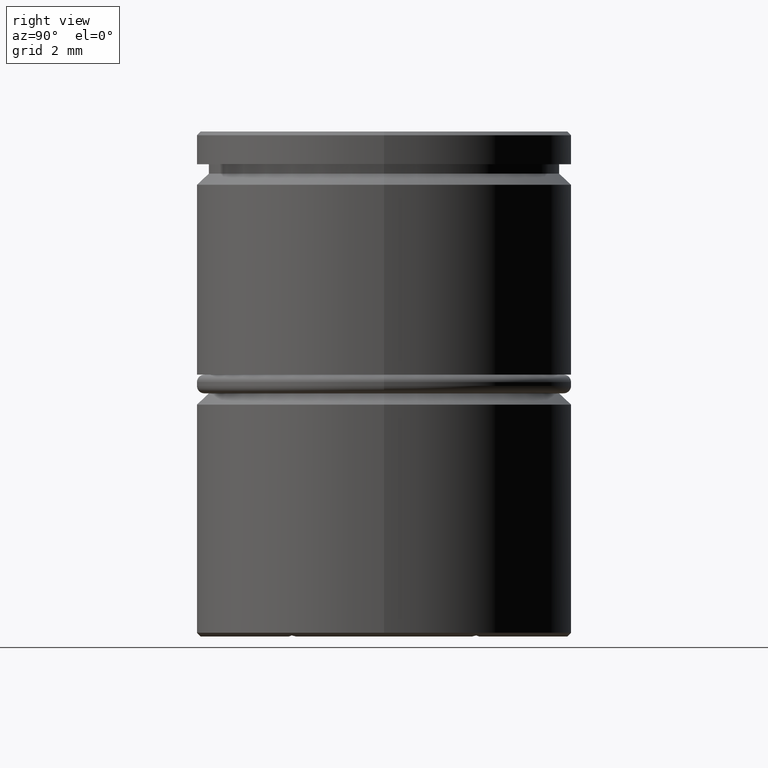
[diagram: clean part render]
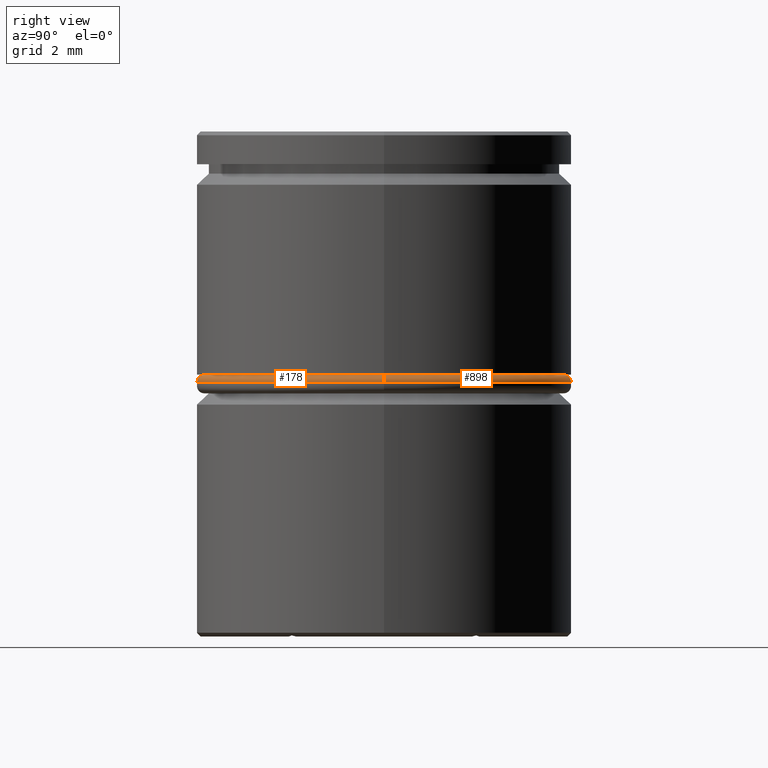
[diagram: same view with one multi-face feature highlighted, each face labeled with its STEP entity id]
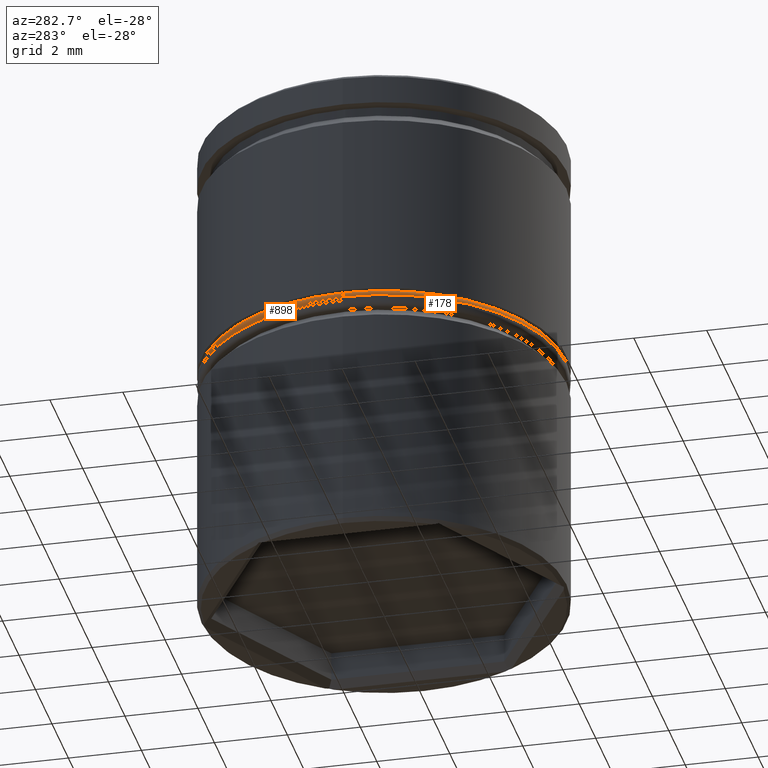
[diagram: same view with one multi-face feature highlighted, each face labeled with its STEP entity id]
A machine part, right view. The highlighted faces form ONE feature: a constant-radius fillet chain: 2 tangent blend faces with common blend radius 0.2 mm. The faces share edges in the B-rep.
A second angle (auxiliary view) of the same feature is appended — it is thin or edge-on in the first view.
Their STEP definitions:
[1] entity #178 (Torus):
#3 = VERTEX_POINT ( 'NONE', #1163 ) ;
#14 = DIRECTION ( 'NONE',  ( -0.000000000000000000, -1.000000000000000000, -0.000000000000000000 ) ) ;
#28 = EDGE_CURVE ( 'NONE', #835, #997, #852, .T. ) ;
#131 = EDGE_CURVE ( 'NONE', #1078, #997, #1222, .T. ) ;
#178 = ADVANCED_FACE ( 'NONE', ( #1319 ), #1101, .T. ) ;
#201 = ORIENTED_EDGE ( 'NONE', *, *, #299, .F. ) ;
#204 = DIRECTION ( 'NONE',  ( 0.000000000000000000, 0.000000000000000000, -1.000000000000000000 ) ) ;
#264 = ORIENTED_EDGE ( 'NONE', *, *, #131, .T. ) ;
#276 = DIRECTION ( 'NONE',  ( -0.000000000000000000, -0.000000000000000000, 1.000000000000000000 ) ) ;
#299 = EDGE_CURVE ( 'NONE', #1078, #3, #1213, .T. ) ;
#343 = DIRECTION ( 'NONE',  ( -1.000000000000000000, 0.000000000000000000, 0.000000000000000000 ) ) ;
#365 = CARTESIAN_POINT ( 'NONE',  ( -4.800000000000000711, 0.000000000000000000, -6.499999999999999112 ) ) ;
#399 = DIRECTION ( 'NONE',  ( -1.000000000000000000, -1.224646799147353454E-16, 0.000000000000000000 ) ) ;
#400 = DIRECTION ( 'NONE',  ( -1.000000000000000000, 0.000000000000000000, 0.000000000000000000 ) ) ;
#405 = CARTESIAN_POINT ( 'NONE',  ( 4.800000000000000711, 5.878304635907295197E-16, -6.699999999999997513 ) ) ;
#418 = EDGE_LOOP ( 'NONE', ( #694, #201, #264, #849 ) ) ;
#537 = AXIS2_PLACEMENT_3D ( 'NONE', #610, #276, #400 ) ;
#610 = CARTESIAN_POINT ( 'NONE',  ( 0.000000000000000000, 0.000000000000000000, -6.499999999999999112 ) ) ;
#692 = DIRECTION ( 'NONE',  ( 0.000000000000000000, 0.000000000000000000, -1.000000000000000000 ) ) ;
#694 = ORIENTED_EDGE ( 'NONE', *, *, #791, .F. ) ;
#766 = DIRECTION ( 'NONE',  ( -1.000000000000000000, 0.000000000000000000, 0.000000000000000000 ) ) ;
#771 = AXIS2_PLACEMENT_3D ( 'NONE', #405, #1118, #399 ) ;
#791 = EDGE_CURVE ( 'NONE', #3, #835, #1237, .T. ) ;
#796 = AXIS2_PLACEMENT_3D ( 'NONE', #1298, #692, #766 ) ;
#835 = VERTEX_POINT ( 'NONE', #1132 ) ;
#849 = ORIENTED_EDGE ( 'NONE', *, *, #28, .F. ) ;
#852 = CIRCLE ( 'NONE', #941, 5.000000000000000000 ) ;
#894 = CARTESIAN_POINT ( 'NONE',  ( -4.800000000000000711, 0.000000000000000000, -6.699999999999997513 ) ) ;
#941 = AXIS2_PLACEMENT_3D ( 'NONE', #1270, #204, #343 ) ;
#997 = VERTEX_POINT ( 'NONE', #1360 ) ;
#1078 = VERTEX_POINT ( 'NONE', #365 ) ;
#1101 = TOROIDAL_SURFACE ( 'NONE', #796, 4.800000000000000711, 0.2000000000000000111 ) ;
#1111 = DIRECTION ( 'NONE',  ( 0.000000000000000000, 0.000000000000000000, -1.000000000000000000 ) ) ;
#1118 = DIRECTION ( 'NONE',  ( -1.224646799147353207E-16, 1.000000000000000000, 0.000000000000000000 ) ) ;
#1132 = CARTESIAN_POINT ( 'NONE',  ( 5.000000000000000000, 0.000000000000000000, -6.699999999999997513 ) ) ;
#1155 = AXIS2_PLACEMENT_3D ( 'NONE', #894, #14, #1111 ) ;
#1163 = CARTESIAN_POINT ( 'NONE',  ( 4.800000000000000711, 6.000769315822031726E-16, -6.499999999999999112 ) ) ;
#1213 = CIRCLE ( 'NONE', #537, 4.800000000000000711 ) ;
#1222 = CIRCLE ( 'NONE', #1155, 0.1999999999999996503 ) ;
#1237 = CIRCLE ( 'NONE', #771, 0.1999999999999996503 ) ;
#1270 = CARTESIAN_POINT ( 'NONE',  ( 0.000000000000000000, 0.000000000000000000, -6.699999999999997513 ) ) ;
#1298 = CARTESIAN_POINT ( 'NONE',  ( 0.000000000000000000, 0.000000000000000000, -6.699999999999997513 ) ) ;
#1319 = FACE_OUTER_BOUND ( 'NONE', #418, .T. ) ;
#1360 = CARTESIAN_POINT ( 'NONE',  ( -5.000000000000000000, 6.123233995736766282E-16, -6.699999999999997513 ) ) ;
[2] entity #898 (Torus):
#3 = VERTEX_POINT ( 'NONE', #1163 ) ;
#14 = DIRECTION ( 'NONE',  ( -0.000000000000000000, -1.000000000000000000, -0.000000000000000000 ) ) ;
#73 = EDGE_CURVE ( 'NONE', #3, #1078, #88, .T. ) ;
#88 = CIRCLE ( 'NONE', #224, 4.800000000000000711 ) ;
#105 = AXIS2_PLACEMENT_3D ( 'NONE', #742, #330, #107 ) ;
#107 = DIRECTION ( 'NONE',  ( -1.000000000000000000, 0.000000000000000000, 0.000000000000000000 ) ) ;
#121 = EDGE_LOOP ( 'NONE', ( #1263, #921, #630, #1042 ) ) ;
#131 = EDGE_CURVE ( 'NONE', #1078, #997, #1222, .T. ) ;
#212 = EDGE_CURVE ( 'NONE', #997, #835, #1145, .T. ) ;
#224 = AXIS2_PLACEMENT_3D ( 'NONE', #314, #965, #953 ) ;
#259 = DIRECTION ( 'NONE',  ( 0.000000000000000000, 0.000000000000000000, -1.000000000000000000 ) ) ;
#314 = CARTESIAN_POINT ( 'NONE',  ( 0.000000000000000000, 0.000000000000000000, -6.499999999999999112 ) ) ;
#330 = DIRECTION ( 'NONE',  ( 0.000000000000000000, 0.000000000000000000, -1.000000000000000000 ) ) ;
#365 = CARTESIAN_POINT ( 'NONE',  ( -4.800000000000000711, 0.000000000000000000, -6.499999999999999112 ) ) ;
#399 = DIRECTION ( 'NONE',  ( -1.000000000000000000, -1.224646799147353454E-16, 0.000000000000000000 ) ) ;
#405 = CARTESIAN_POINT ( 'NONE',  ( 4.800000000000000711, 5.878304635907295197E-16, -6.699999999999997513 ) ) ;
#453 = TOROIDAL_SURFACE ( 'NONE', #105, 4.800000000000000711, 0.2000000000000000111 ) ;
#630 = ORIENTED_EDGE ( 'NONE', *, *, #212, .F. ) ;
#683 = DIRECTION ( 'NONE',  ( -1.000000000000000000, 0.000000000000000000, 0.000000000000000000 ) ) ;
#742 = CARTESIAN_POINT ( 'NONE',  ( 0.000000000000000000, 0.000000000000000000, -6.699999999999997513 ) ) ;
#771 = AXIS2_PLACEMENT_3D ( 'NONE', #405, #1118, #399 ) ;
#791 = EDGE_CURVE ( 'NONE', #3, #835, #1237, .T. ) ;
#835 = VERTEX_POINT ( 'NONE', #1132 ) ;
#894 = CARTESIAN_POINT ( 'NONE',  ( -4.800000000000000711, 0.000000000000000000, -6.699999999999997513 ) ) ;
#898 = ADVANCED_FACE ( 'NONE', ( #1378 ), #453, .T. ) ;
#921 = ORIENTED_EDGE ( 'NONE', *, *, #791, .T. ) ;
#953 = DIRECTION ( 'NONE',  ( -1.000000000000000000, 0.000000000000000000, 0.000000000000000000 ) ) ;
#965 = DIRECTION ( 'NONE',  ( -0.000000000000000000, -0.000000000000000000, 1.000000000000000000 ) ) ;
#997 = VERTEX_POINT ( 'NONE', #1360 ) ;
#1042 = ORIENTED_EDGE ( 'NONE', *, *, #131, .F. ) ;
#1078 = VERTEX_POINT ( 'NONE', #365 ) ;
#1111 = DIRECTION ( 'NONE',  ( 0.000000000000000000, 0.000000000000000000, -1.000000000000000000 ) ) ;
#1118 = DIRECTION ( 'NONE',  ( -1.224646799147353207E-16, 1.000000000000000000, 0.000000000000000000 ) ) ;
#1132 = CARTESIAN_POINT ( 'NONE',  ( 5.000000000000000000, 0.000000000000000000, -6.699999999999997513 ) ) ;
#1145 = CIRCLE ( 'NONE', #1235, 5.000000000000000000 ) ;
#1155 = AXIS2_PLACEMENT_3D ( 'NONE', #894, #14, #1111 ) ;
#1163 = CARTESIAN_POINT ( 'NONE',  ( 4.800000000000000711, 6.000769315822031726E-16, -6.499999999999999112 ) ) ;
#1222 = CIRCLE ( 'NONE', #1155, 0.1999999999999996503 ) ;
#1235 = AXIS2_PLACEMENT_3D ( 'NONE', #1313, #259, #683 ) ;
#1237 = CIRCLE ( 'NONE', #771, 0.1999999999999996503 ) ;
#1263 = ORIENTED_EDGE ( 'NONE', *, *, #73, .F. ) ;
#1313 = CARTESIAN_POINT ( 'NONE',  ( 0.000000000000000000, 0.000000000000000000, -6.699999999999997513 ) ) ;
#1360 = CARTESIAN_POINT ( 'NONE',  ( -5.000000000000000000, 6.123233995736766282E-16, -6.699999999999997513 ) ) ;
#1378 = FACE_OUTER_BOUND ( 'NONE', #121, .T. ) ;